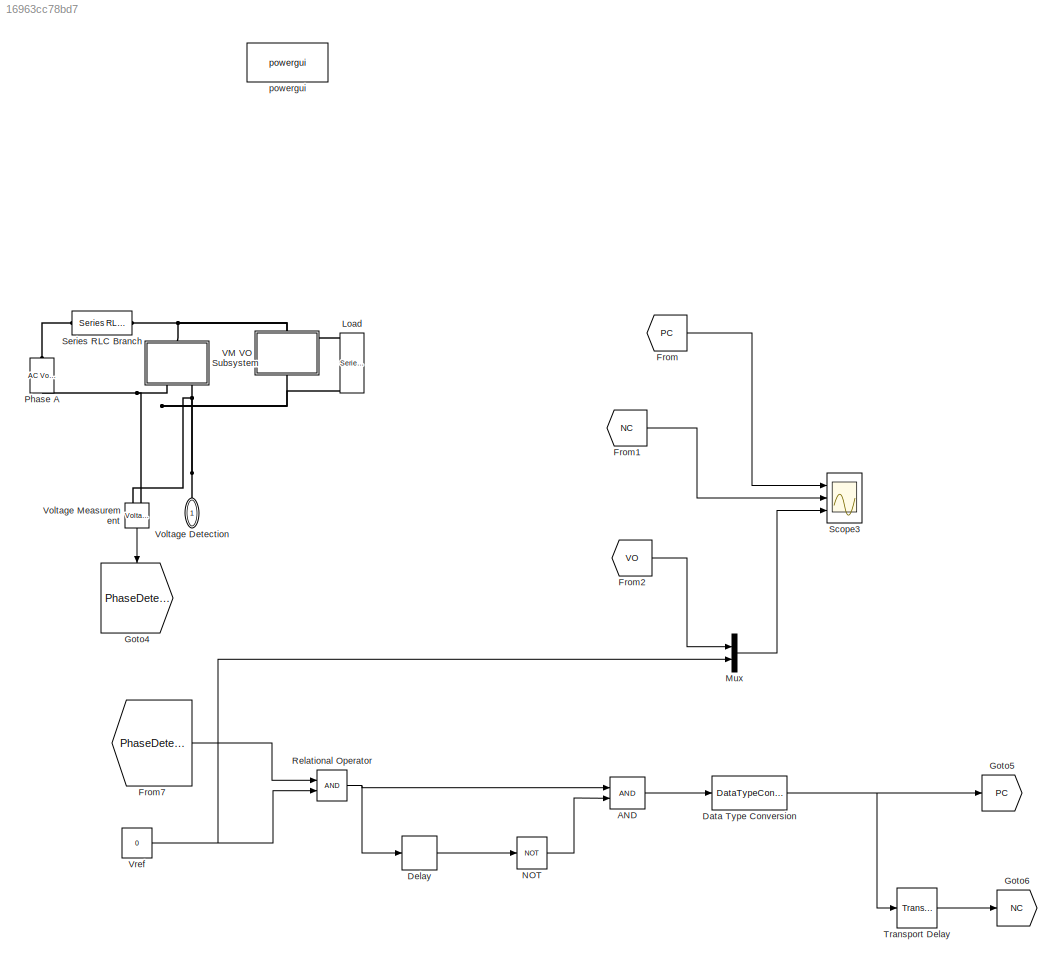
MODEL slx_16963cc78bd7
KIND model
CONFIG AbsTol = auto
CONFIG EnableMultiTasking = off
CONFIG FixedStep = auto
CONFIG MaxStep = auto
CONFIG MinStep = auto
CONFIG RelTol = 1e-3
CONFIG SampleTimeConstraint = Unconstrained
CONFIG Solver = FixedStepDiscrete
CONFIG SolverName = FixedStepDiscrete
CONFIG StartTime = 0.0
CONFIG StopTime = 1
BLOCK [Logic] AND
  AllPortsSameDT = off
  IconShape = distinctive
  OutDataTypeStr = boolean
  Ports = [2, 1]
BLOCK [DataTypeConversion] Data Type Conversion
  OutDataTypeStr = double
  RndMeth = Floor
  SaturateOnIntegerOverflow = off
BLOCK [Delay] Delay
  InputPortMap = u0
  Ports = [1, 1]
BLOCK [From] From
  GotoTag = PC
  TagVisibility = global
BLOCK [From] From1
  GotoTag = NC
  TagVisibility = global
BLOCK [From] From2
  GotoTag = VO
  TagVisibility = global
BLOCK [From] From7
  GotoTag = PhaseDetector
BLOCK [Goto] Goto4
  GotoTag = PhaseDetector
BLOCK [Goto] Goto5
  GotoTag = PC
  TagVisibility = global
BLOCK [Goto] Goto6
  GotoTag = NC
  TagVisibility = global
BLOCK [Reference] Load  REF=powerlib/Elements/Series RLC Branch
  Ports = [0, 0, 0, 0, 0, 1, 1]
  SourceBlock = powerlib/Elements/Series RLC Branch
  SourceProductBaseCode = PS
  SourceProductName = Simscape Power Systems
  SourceType = Series RLC Branch
BLOCK [Mux] Mux
  DisplayOption = bar
  Inputs = 2
  Ports = [2, 1]
BLOCK [Logic] NOT
  AllPortsSameDT = off
  IconShape = distinctive
  Operator = NOT
  OutDataTypeStr = boolean
  Ports = [1, 1]
BLOCK [Reference] Phase A  REF=powerlib/Electrical
Sources/AC Voltage Source
  Ports = [0, 0, 0, 0, 0, 1, 1]
  SourceBlock = powerlib/Electrical\nSources/AC Voltage Source
  SourceProductBaseCode = PS
  SourceProductName = Simscape Power Systems
  SourceType = AC Voltage Source
BLOCK [RelationalOperator] Relational Operator
  InputSameDT = off
  OutDataTypeStr = boolean
  Ports = [2, 1]
  RndMeth = Simplest
BLOCK [Scope] Scope3
  Floating = off
  NumInputPorts = 3
  Ports = [3]
  ScopeSpecificationString = Simulink.scopes.TimeScopeBlockCfg('CurrentConfiguration', extmgr.ConfigurationSet(extmgr.Configuration('Core','General UI',true,'FigureColor',[1 1 1]),extmgr.Configuration('Core','Source UI',true),extmgr.Configuration('Sources','WiredSimulink',true),extmgr.Configuration('Visuals','Time Domain',true,'SerializedDisplays',{struct('MinYLimReal','-0.125','MaxYLimReal','1.125','YLabelReal','','MinYLimMa...<+3306ch>
BLOCK [Reference] Series RLC Branch  REF=powerlib/Elements/Series RLC Branch
  Ports = [0, 0, 0, 0, 0, 1, 1]
  SourceBlock = powerlib/Elements/Series RLC Branch
  SourceProductBaseCode = PS
  SourceProductName = Simscape Power Systems
  SourceType = Series RLC Branch
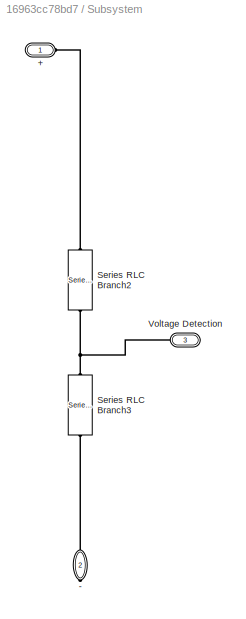
BLOCK [SubSystem] Subsystem
  Ports = [0, 0, 0, 0, 0, 1, 2]
  RequestExecContextInheritance = off
BLOCK [PMIOPort] Subsystem/+
  Side = Left
BLOCK [PMIOPort] Subsystem/-
  Port = 2
  Side = Right
BLOCK [Reference] Subsystem/Series RLC Branch2  REF=powerlib/Elements/Series RLC Branch
  Ports = [0, 0, 0, 0, 0, 1, 1]
  SourceBlock = powerlib/Elements/Series RLC Branch
  SourceProductBaseCode = PS
  SourceProductName = Simscape Power Systems
  SourceType = Series RLC Branch
BLOCK [Reference] Subsystem/Series RLC Branch3  REF=powerlib/Elements/Series RLC Branch
  Ports = [0, 0, 0, 0, 0, 1, 1]
  SourceBlock = powerlib/Elements/Series RLC Branch
  SourceProductBaseCode = PS
  SourceProductName = Simscape Power Systems
  SourceType = Series RLC Branch
BLOCK [PMIOPort] Subsystem/Voltage Detection
  Port = 3
  Side = Right
BLOCK [TransportDelay] Transport Delay
  DelayTime = 0.01
  Ports = [1, 1]
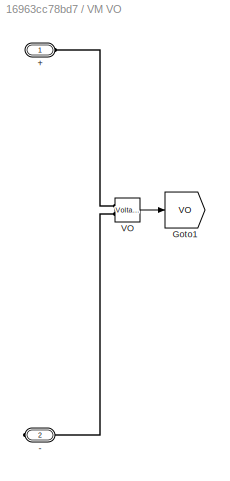
BLOCK [SubSystem] VM VO
  Ports = [0, 0, 0, 0, 0, 1, 1]
  RequestExecContextInheritance = off
BLOCK [PMIOPort] VM VO/+
  Side = Left
BLOCK [PMIOPort] VM VO/-
  Port = 2
  Side = Right
BLOCK [Goto] VM VO/Goto1
  GotoTag = VO
  TagVisibility = global
BLOCK [Reference] VM VO/VO  REF=powerlib/Measurements/Voltage Measurement
  Ports = [0, 1, 0, 0, 0, 2]
  SourceBlock = powerlib/Measurements/Voltage Measurement
  SourceProductBaseCode = PS
  SourceProductName = Simscape Power Systems
  SourceType = Voltage Measurement
  UserDataPersistent = on
BLOCK [PMIOPort] Voltage Detection
  Side = Left
BLOCK [Reference] Voltage Measurement  REF=powerlib/Measurements/Voltage Measurement
  Ports = [0, 1, 0, 0, 0, 2]
  SourceBlock = powerlib/Measurements/Voltage Measurement
  SourceProductBaseCode = PS
  SourceProductName = Simscape Power Systems
  SourceType = Voltage Measurement
  UserDataPersistent = on
BLOCK [Constant] Vref
  Value = 0
BLOCK [Reference] powergui  REF=powerlib/powergui
  Ports = []
  Priority = 1
  SourceBlock = powerlib/powergui
  SourceProductBaseCode = PS
  SourceProductName = Simscape Power Systems
  SourceType = PSB option menu block
LINE AND:1 -> Data Type Conversion:1
NET Data Type Conversion:1 -> Goto5:1, Transport Delay:1
LINE Delay:1 -> NOT:1
LINE From1:1 -> Scope3:2
LINE From2:1 -> Mux:1
LINE From7:1 -> Relational Operator:1
LINE From:1 -> Scope3:1
LINE Mux:1 -> Scope3:3
LINE NOT:1 -> AND:2
NET Relational Operator:1 -> AND:1, Delay:1
LINE Transport Delay:1 -> Goto6:1
LINE VM VO/VO:1 -> VM VO/Goto1:1
LINE Voltage Measurement:1 -> Goto4:1
NET Vref:1 -> Mux:2, Relational Operator:2
PNET net1: Load:LConn1 -- Series RLC Branch:RConn1 -- Subsystem:LConn1 -- VM VO:LConn1
PNET net2: Load:RConn1 -- Phase A:LConn1 -- Subsystem:RConn1 -- VM VO:RConn1 -- Voltage Measurement:LConn2
PLINE Phase A:RConn1 -- Series RLC Branch:LConn1
PLINE Subsystem/+:RConn1 -- Subsystem/Series RLC Branch2:LConn1
PLINE Subsystem/-:RConn1 -- Subsystem/Series RLC Branch3:RConn1
PNET net3: Subsystem/Series RLC Branch2:RConn1 -- Subsystem/Series RLC Branch3:LConn1 -- Subsystem/Voltage Detection:RConn1
PNET net4: Subsystem:RConn2 -- Voltage Detection:RConn1 -- Voltage Measurement:LConn1
PLINE VM VO/+:RConn1 -- VM VO/VO:LConn1
PLINE VM VO/-:RConn1 -- VM VO/VO:LConn2
note: NET lines group one-source signal fan-out (src -> all destinations, sorted); 1:1 wires keep LINE; PNET lines group multi-terminal physical nets as a canonical sorted terminal list (undirected conserving connections); 2-terminal nets keep the pairwise PLINE form
